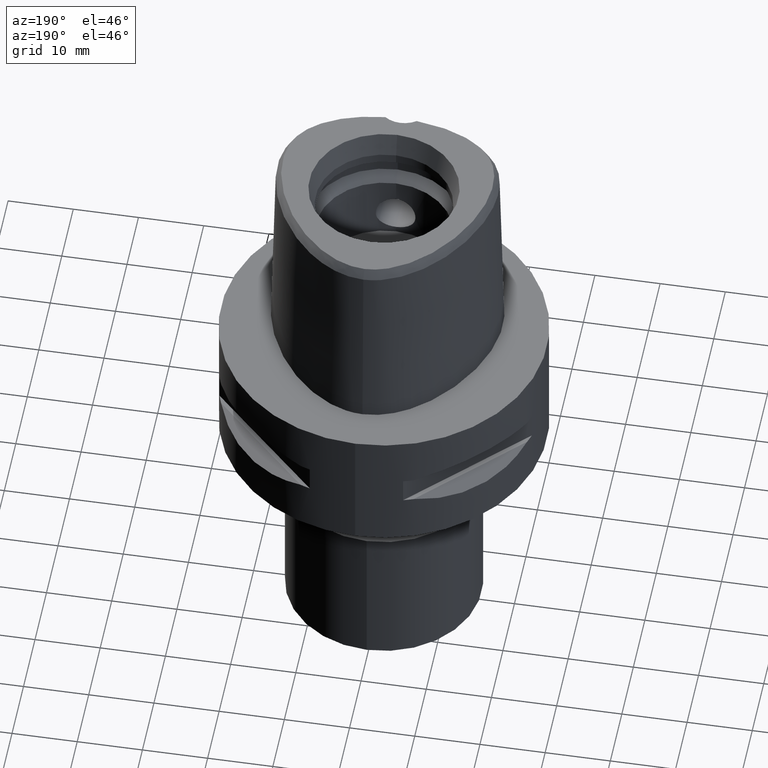
[diagram: clean part render]
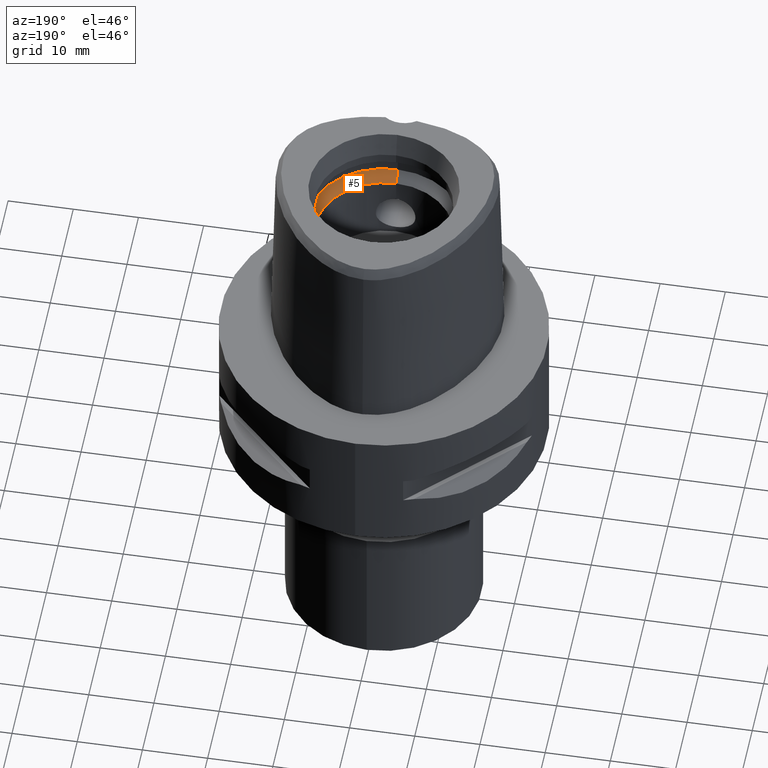
[diagram: same view with one face highlighted and labeled with its STEP entity id]
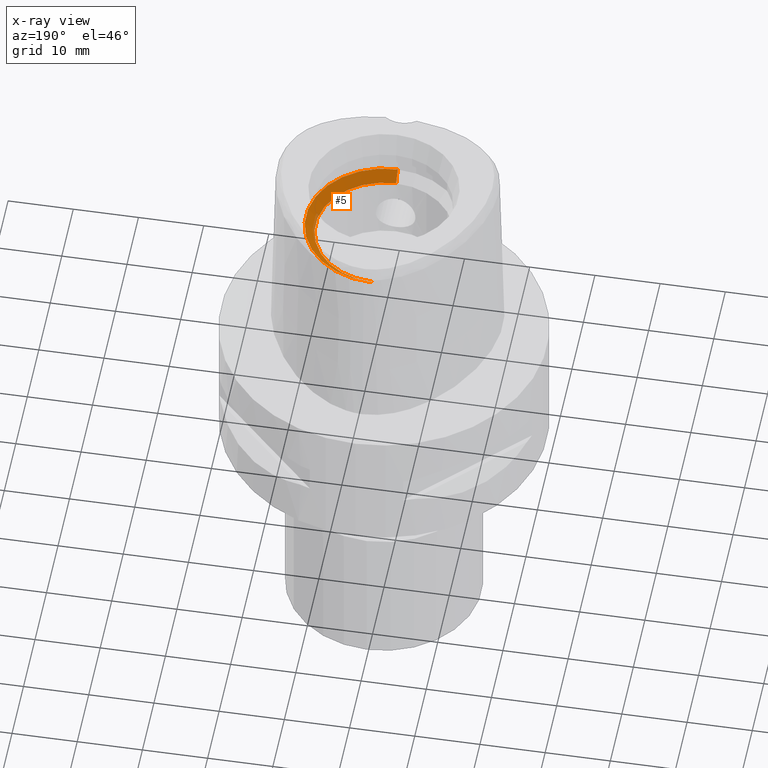
[diagram: x-ray of the same camera — body ghosted, the highlighted face saturated]
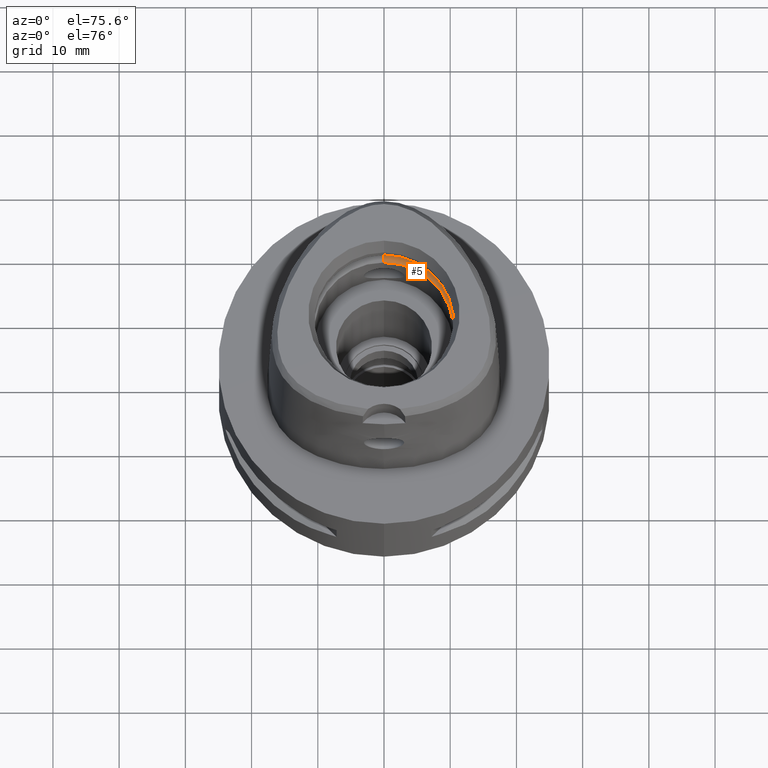
[diagram: same view with one face highlighted and labeled with its STEP entity id]
A machine part, auxiliary view. The second image highlights one B-rep face of the part: STEP entity #5.
The next image is the same camera in x-ray: the body ghosted, the highlighted face saturated — about 4% of this face is hidden behind the body in this view.
A second angle (auxiliary view) of the same face is appended — the face is thin or edge-on in the first view.
In plain terms, the highlighted conical surface has half-angle 45 deg.
Its self-contained STEP definition (entity closure, byte-faithful):
#5 = ADVANCED_FACE ( 'NONE', ( #4194 ), #2413, .F. ) ;
#48 = CARTESIAN_POINT ( 'NONE',  ( 0.0000000000000000000, 10.50000000000000000, 20.40000000000000213 ) ) ;
#110 = DIRECTION ( 'NONE',  ( 0.0000000000000000000, 1.000000000000000000, 0.0000000000000000000 ) ) ;
#821 = AXIS2_PLACEMENT_3D ( 'NONE', #2415, #1677, #3140 ) ;
#856 = CARTESIAN_POINT ( 'NONE',  ( 0.0000000000000000000, 1.483659597167000164E-14, 21.14999999999999858 ) ) ;
#918 = VERTEX_POINT ( 'NONE', #3209 ) ;
#924 = DIRECTION ( 'NONE',  ( 0.0000000000000000000, -1.000000000000000000, 0.0000000000000000000 ) ) ;
#1103 = ORIENTED_EDGE ( 'NONE', *, *, #2986, .F. ) ;
#1123 = VERTEX_POINT ( 'NONE', #4589 ) ;
#1133 = CIRCLE ( 'NONE', #1271, 10.50000000000000000 ) ;
#1147 = EDGE_CURVE ( 'NONE', #3577, #1123, #1133, .T. ) ;
#1188 = LINE ( 'NONE', #48, #4391 ) ;
#1271 = AXIS2_PLACEMENT_3D ( 'NONE', #1674, #3105, #924 ) ;
#1356 = CARTESIAN_POINT ( 'NONE',  ( 0.0000000000000000000, -10.50000000000000000, 20.40000000000000213 ) ) ;
#1405 = DIRECTION ( 'NONE',  ( 0.0000000000000000000, -0.7071067811865474617, 0.7071067811865474617 ) ) ;
#1536 = EDGE_CURVE ( 'NONE', #3577, #918, #2475, .T. ) ;
#1568 = DIRECTION ( 'NONE',  ( 0.0000000000000000000, 0.7071067811865474617, 0.7071067811865474617 ) ) ;
#1674 = CARTESIAN_POINT ( 'NONE',  ( 0.0000000000000000000, 1.483659597167000164E-14, 20.40000000000000213 ) ) ;
#1677 = DIRECTION ( 'NONE',  ( 0.0000000000000000000, 0.0000000000000000000, -1.000000000000000000 ) ) ;
#1888 = AXIS2_PLACEMENT_3D ( 'NONE', #856, #2370, #110 ) ;
#2128 = VECTOR ( 'NONE', #1405, 1000.000000000000114 ) ;
#2136 = CIRCLE ( 'NONE', #821, 12.00000000000000000 ) ;
#2294 = ORIENTED_EDGE ( 'NONE', *, *, #1536, .T. ) ;
#2370 = DIRECTION ( 'NONE',  ( 0.0000000000000000000, 0.0000000000000000000, 1.000000000000000000 ) ) ;
#2413 = CONICAL_SURFACE ( 'NONE', #1888, 11.25000000000000000, 0.7853981633972997312 ) ;
#2415 = CARTESIAN_POINT ( 'NONE',  ( 0.0000000000000000000, 1.483659597167000164E-14, 21.89999999999999858 ) ) ;
#2456 = EDGE_CURVE ( 'NONE', #1123, #3517, #1188, .T. ) ;
#2457 = ORIENTED_EDGE ( 'NONE', *, *, #1147, .F. ) ;
#2475 = LINE ( 'NONE', #3990, #2128 ) ;
#2647 = ORIENTED_EDGE ( 'NONE', *, *, #2456, .F. ) ;
#2895 = CARTESIAN_POINT ( 'NONE',  ( 0.0000000000000000000, 12.00000000000000000, 21.89999999999999858 ) ) ;
#2986 = EDGE_CURVE ( 'NONE', #3517, #918, #2136, .T. ) ;
#3105 = DIRECTION ( 'NONE',  ( 0.0000000000000000000, 0.0000000000000000000, 1.000000000000000000 ) ) ;
#3140 = DIRECTION ( 'NONE',  ( 0.0000000000000000000, 1.000000000000000000, 0.0000000000000000000 ) ) ;
#3209 = CARTESIAN_POINT ( 'NONE',  ( 0.0000000000000000000, -12.00000000000000000, 21.89999999999999858 ) ) ;
#3517 = VERTEX_POINT ( 'NONE', #2895 ) ;
#3577 = VERTEX_POINT ( 'NONE', #1356 ) ;
#3990 = CARTESIAN_POINT ( 'NONE',  ( 0.0000000000000000000, -10.50000000000000000, 20.40000000000000213 ) ) ;
#4057 = EDGE_LOOP ( 'NONE', ( #1103, #2647, #2457, #2294 ) ) ;
#4194 = FACE_OUTER_BOUND ( 'NONE', #4057, .T. ) ;
#4391 = VECTOR ( 'NONE', #1568, 1000.000000000000114 ) ;
#4589 = CARTESIAN_POINT ( 'NONE',  ( 0.0000000000000000000, 10.50000000000000000, 20.40000000000000213 ) ) ;